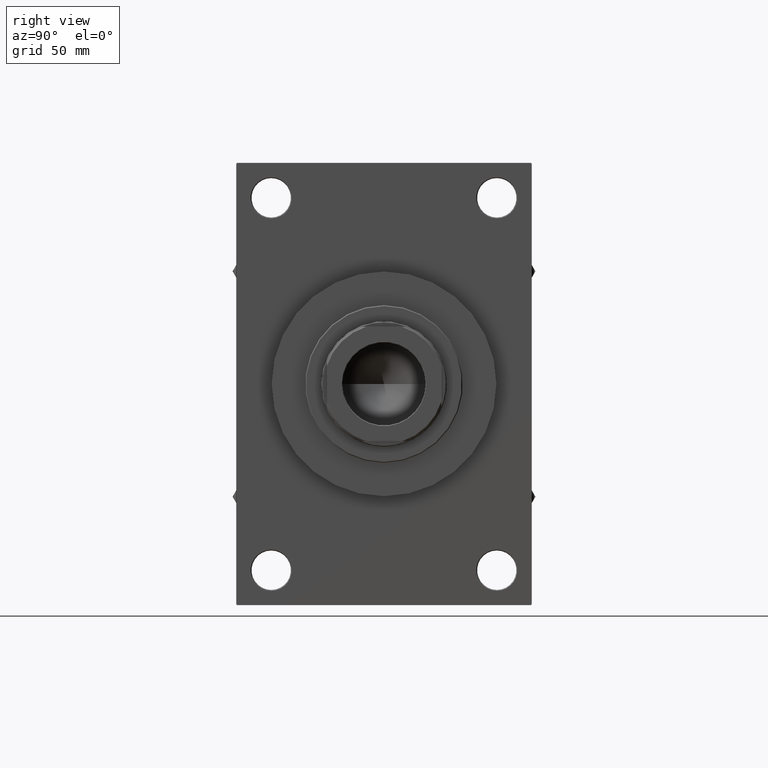
[diagram: clean part render]
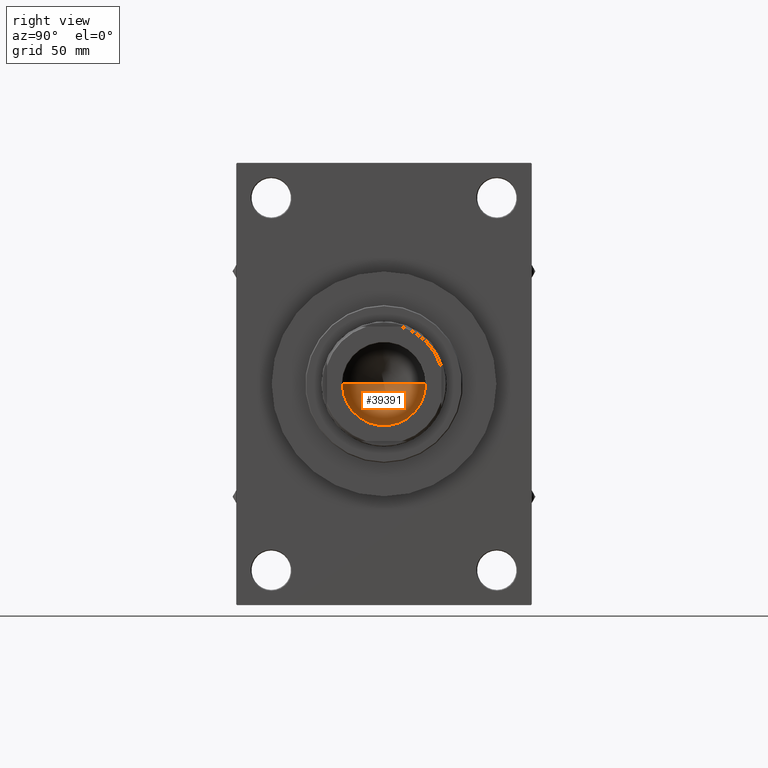
[diagram: same view with one face highlighted and labeled with its STEP entity id]
A machine part, right view. The second image highlights one B-rep face of the part: STEP entity #39391.
In plain terms, the highlighted conical surface has half-angle 59 deg.
Its self-contained STEP definition (entity closure, byte-faithful):
#1670 = CARTESIAN_POINT ( 'NONE',  ( 23.24999999999998579, 0.000000000000000000, 128.9999999999999716 ) ) ;
#2198 = EDGE_CURVE ( 'NONE', #24601, #31181, #5532, .T. ) ;
#4660 = DIRECTION ( 'NONE',  ( 1.000000000000000000, 0.000000000000000000, 0.000000000000000000 ) ) ;
#5508 = ORIENTED_EDGE ( 'NONE', *, *, #44179, .T. ) ;
#5532 = LINE ( 'NONE', #1670, #19836 ) ;
#5879 = EDGE_LOOP ( 'NONE', ( #33635, #22367, #5508 ) ) ;
#6528 = CARTESIAN_POINT ( 'NONE',  ( -23.24999999999998579, 2.847303808017594561E-15, 128.9999999999999716 ) ) ;
#8543 = LINE ( 'NONE', #6528, #47081 ) ;
#9149 = DIRECTION ( 'NONE',  ( 0.8571673007021117785, 0.000000000000000000, 0.5150380749100550437 ) ) ;
#9999 = CARTESIAN_POINT ( 'NONE',  ( 23.24999999999998579, 0.000000000000000000, 128.9999999999999716 ) ) ;
#11304 = DIRECTION ( 'NONE',  ( 1.000000000000000000, 0.000000000000000000, 0.000000000000000000 ) ) ;
#11410 = DIRECTION ( 'NONE',  ( -0.000000000000000000, -0.000000000000000000, 1.000000000000000000 ) ) ;
#12157 = EDGE_CURVE ( 'NONE', #24601, #41742, #8543, .T. ) ;
#13566 = CONICAL_SURFACE ( 'NONE', #47449, 23.24999999999998579, 1.029744258676653423 ) ;
#19271 = CARTESIAN_POINT ( 'NONE',  ( 0.000000000000000000, 0.000000000000000000, 128.9999999999999716 ) ) ;
#19836 = VECTOR ( 'NONE', #9149, 1000.000000000000000 ) ;
#22367 = ORIENTED_EDGE ( 'NONE', *, *, #2198, .T. ) ;
#23254 = DIRECTION ( 'NONE',  ( -0.8571673007021117785, 1.049727191138617956E-16, 0.5150380749100550437 ) ) ;
#24601 = VERTEX_POINT ( 'NONE', #46370 ) ;
#26363 = CARTESIAN_POINT ( 'NONE',  ( 0.000000000000000000, 0.000000000000000000, 128.9999999999999716 ) ) ;
#31181 = VERTEX_POINT ( 'NONE', #9999 ) ;
#33635 = ORIENTED_EDGE ( 'NONE', *, *, #12157, .F. ) ;
#34006 = DIRECTION ( 'NONE',  ( -0.000000000000000000, -0.000000000000000000, 1.000000000000000000 ) ) ;
#35333 = AXIS2_PLACEMENT_3D ( 'NONE', #19271, #34006, #11304 ) ;
#36085 = CIRCLE ( 'NONE', #35333, 23.24999999999998579 ) ;
#39391 = ADVANCED_FACE ( 'NONE', ( #44470 ), #13566, .F. ) ;
#39583 = CARTESIAN_POINT ( 'NONE',  ( -23.24999999999998579, 2.847303808017594561E-15, 128.9999999999999716 ) ) ;
#41742 = VERTEX_POINT ( 'NONE', #39583 ) ;
#44179 = EDGE_CURVE ( 'NONE', #31181, #41742, #36085, .T. ) ;
#44470 = FACE_OUTER_BOUND ( 'NONE', #5879, .T. ) ;
#46370 = CARTESIAN_POINT ( 'NONE',  ( -1.584115414415908206E-14, 0.000000000000000000, 115.0299906076091787 ) ) ;
#47081 = VECTOR ( 'NONE', #23254, 1000.000000000000000 ) ;
#47449 = AXIS2_PLACEMENT_3D ( 'NONE', #26363, #11410, #4660 ) ;